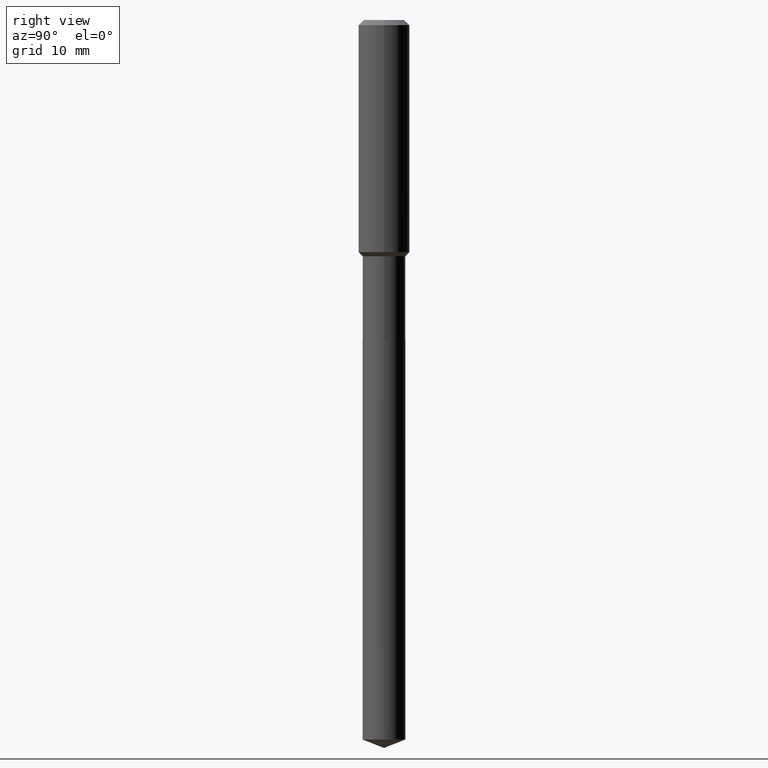
[diagram: clean part render]
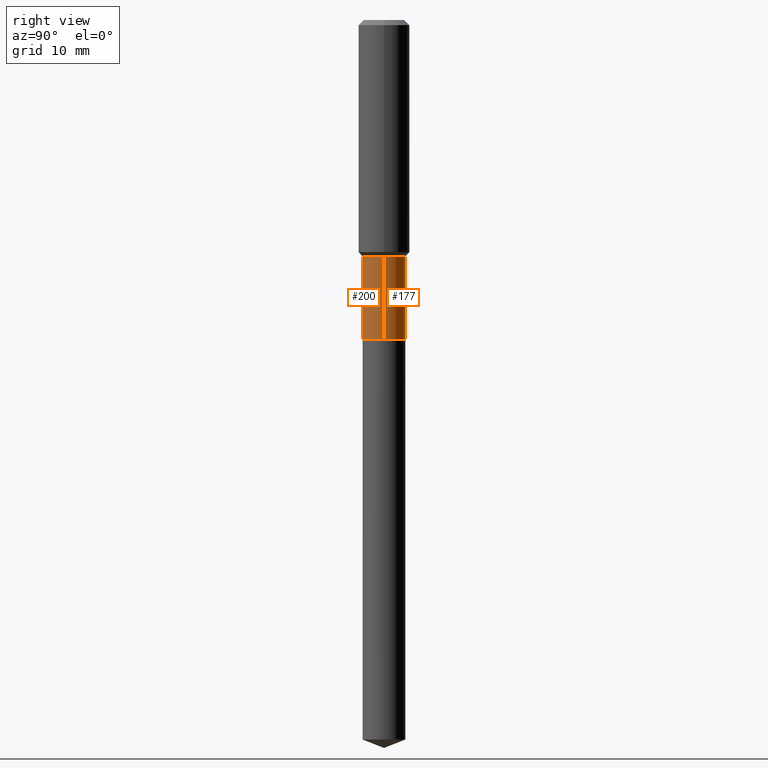
[diagram: same view with one multi-face feature highlighted, each face labeled with its STEP entity id]
A machine part, right view. The highlighted faces form ONE feature: a constant-radius fillet chain: 2 tangent blend faces with common blend radius 3.3503 mm. The faces share edges in the B-rep.
Their STEP definitions:
[1] entity #200 (Cylinder):
#28 = LINE ( 'NONE', #166, #396 ) ;
#46 = CARTESIAN_POINT ( 'NONE',  ( 3.561825316208651906E-29, -5.085342570025042633E-15, -1.456500000000000128 ) ) ;
#52 = ORIENTED_EDGE ( 'NONE', *, *, #141, .T. ) ;
#77 = FACE_OUTER_BOUND ( 'NONE', #220, .T. ) ;
#82 = ORIENTED_EDGE ( 'NONE', *, *, #289, .T. ) ;
#83 = CARTESIAN_POINT ( 'NONE',  ( 0.1318999999999999340, -9.210527771868182178E-16, 6.431677167274836239E-30 ) ) ;
#108 = AXIS2_PLACEMENT_3D ( 'NONE', #429, #432, #394 ) ;
#115 = VERTEX_POINT ( 'NONE', #343 ) ;
#134 = AXIS2_PLACEMENT_3D ( 'NONE', #46, #350, #286 ) ;
#141 = EDGE_CURVE ( 'NONE', #115, #155, #147, .T. ) ;
#147 = CIRCLE ( 'NONE', #108, 0.1318999999999999895 ) ;
#153 = ORIENTED_EDGE ( 'NONE', *, *, #170, .F. ) ;
#155 = VERTEX_POINT ( 'NONE', #351 ) ;
#166 = CARTESIAN_POINT ( 'NONE',  ( -0.1318999999999999340, 9.372058684675716759E-16, -6.488075384046218569E-30 ) ) ;
#169 = DIRECTION ( 'NONE',  ( -2.445468806185136597E-29, 3.491481338843145583E-15, 1.000000000000000000 ) ) ;
#170 = EDGE_CURVE ( 'NONE', #115, #459, #28, .T. ) ;
#200 = ADVANCED_FACE ( 'NONE', ( #77 ), #318, .T. ) ;
#203 = AXIS2_PLACEMENT_3D ( 'NONE', #355, #169, #392 ) ;
#206 = CARTESIAN_POINT ( 'NONE',  ( 0.1318999999999999062, -6.006395347211860259E-15, -1.456500000000000128 ) ) ;
#220 = EDGE_LOOP ( 'NONE', ( #153, #52, #82, #254 ) ) ;
#228 = CARTESIAN_POINT ( 'NONE',  ( -0.1318999999999999062, -5.041083053966604545E-15, -1.456500000000000128 ) ) ;
#254 = ORIENTED_EDGE ( 'NONE', *, *, #465, .F. ) ;
#277 = DIRECTION ( 'NONE',  ( -2.445468806185136877E-29, 3.491481338843145188E-15, 1.000000000000000000 ) ) ;
#286 = DIRECTION ( 'NONE',  ( 1.000000000000000000, -6.982962677686265922E-15, 0.000000000000000000 ) ) ;
#289 = EDGE_CURVE ( 'NONE', #155, #338, #425, .T. ) ;
#318 = CYLINDRICAL_SURFACE ( 'NONE', #203, 0.1318999999999999340 ) ;
#337 = CIRCLE ( 'NONE', #134, 0.1318999999999999062 ) ;
#338 = VERTEX_POINT ( 'NONE', #206 ) ;
#340 = DIRECTION ( 'NONE',  ( -2.445468806185136877E-29, 3.491481338843145188E-15, 1.000000000000000000 ) ) ;
#343 = CARTESIAN_POINT ( 'NONE',  ( -0.1318999999999999895, -5.041083053966604545E-15, -1.968000000000000194 ) ) ;
#350 = DIRECTION ( 'NONE',  ( -2.445468806185136597E-29, 3.491481338843145583E-15, 1.000000000000000000 ) ) ;
#351 = CARTESIAN_POINT ( 'NONE',  ( 0.1318999999999999895, -7.792288052030129408E-15, -1.968000000000000194 ) ) ;
#355 = CARTESIAN_POINT ( 'NONE',  ( 0.000000000000000000, 0.000000000000000000, 0.000000000000000000 ) ) ;
#392 = DIRECTION ( 'NONE',  ( 1.000000000000000000, -6.982962677686267499E-15, 4.876176775795935793E-29 ) ) ;
#394 = DIRECTION ( 'NONE',  ( 1.000000000000000000, -6.982962677686269077E-15, 0.000000000000000000 ) ) ;
#396 = VECTOR ( 'NONE', #340, 39.37007874015748143 ) ;
#425 = LINE ( 'NONE', #83, #436 ) ;
#429 = CARTESIAN_POINT ( 'NONE',  ( 4.812682610572349594E-29, -6.871235274843310993E-15, -1.968000000000000194 ) ) ;
#432 = DIRECTION ( 'NONE',  ( -2.445468806185136597E-29, 3.491481338843145583E-15, 1.000000000000000000 ) ) ;
#436 = VECTOR ( 'NONE', #277, 39.37007874015748143 ) ;
#459 = VERTEX_POINT ( 'NONE', #228 ) ;
#465 = EDGE_CURVE ( 'NONE', #459, #338, #337, .T. ) ;
[2] entity #177 (Cylinder):
#7 = CIRCLE ( 'NONE', #378, 0.1318999999999999895 ) ;
#14 = ORIENTED_EDGE ( 'NONE', *, *, #289, .F. ) ;
#28 = LINE ( 'NONE', #166, #396 ) ;
#35 = DIRECTION ( 'NONE',  ( -2.445468806185136597E-29, 3.491481338843145583E-15, 1.000000000000000000 ) ) ;
#55 = DIRECTION ( 'NONE',  ( 1.000000000000000000, -6.982962677686269077E-15, 0.000000000000000000 ) ) ;
#61 = CARTESIAN_POINT ( 'NONE',  ( 3.561825316208651906E-29, -5.085342570025042633E-15, -1.456500000000000128 ) ) ;
#83 = CARTESIAN_POINT ( 'NONE',  ( 0.1318999999999999340, -9.210527771868182178E-16, 6.431677167274836239E-30 ) ) ;
#103 = CARTESIAN_POINT ( 'NONE',  ( 0.000000000000000000, 0.000000000000000000, 0.000000000000000000 ) ) ;
#115 = VERTEX_POINT ( 'NONE', #343 ) ;
#124 = AXIS2_PLACEMENT_3D ( 'NONE', #103, #399, #453 ) ;
#138 = CARTESIAN_POINT ( 'NONE',  ( 4.812682610572349594E-29, -6.871235274843310993E-15, -1.968000000000000194 ) ) ;
#155 = VERTEX_POINT ( 'NONE', #351 ) ;
#166 = CARTESIAN_POINT ( 'NONE',  ( -0.1318999999999999340, 9.372058684675716759E-16, -6.488075384046218569E-30 ) ) ;
#170 = EDGE_CURVE ( 'NONE', #115, #459, #28, .T. ) ;
#177 = ADVANCED_FACE ( 'NONE', ( #485 ), #326, .T. ) ;
#180 = EDGE_CURVE ( 'NONE', #338, #459, #407, .T. ) ;
#189 = EDGE_LOOP ( 'NONE', ( #424, #382, #464, #14 ) ) ;
#206 = CARTESIAN_POINT ( 'NONE',  ( 0.1318999999999999062, -6.006395347211860259E-15, -1.456500000000000128 ) ) ;
#216 = EDGE_CURVE ( 'NONE', #155, #115, #7, .T. ) ;
#228 = CARTESIAN_POINT ( 'NONE',  ( -0.1318999999999999062, -5.041083053966604545E-15, -1.456500000000000128 ) ) ;
#277 = DIRECTION ( 'NONE',  ( -2.445468806185136877E-29, 3.491481338843145188E-15, 1.000000000000000000 ) ) ;
#289 = EDGE_CURVE ( 'NONE', #155, #338, #425, .T. ) ;
#326 = CYLINDRICAL_SURFACE ( 'NONE', #124, 0.1318999999999999340 ) ;
#338 = VERTEX_POINT ( 'NONE', #206 ) ;
#340 = DIRECTION ( 'NONE',  ( -2.445468806185136877E-29, 3.491481338843145188E-15, 1.000000000000000000 ) ) ;
#343 = CARTESIAN_POINT ( 'NONE',  ( -0.1318999999999999895, -5.041083053966604545E-15, -1.968000000000000194 ) ) ;
#351 = CARTESIAN_POINT ( 'NONE',  ( 0.1318999999999999895, -7.792288052030129408E-15, -1.968000000000000194 ) ) ;
#356 = AXIS2_PLACEMENT_3D ( 'NONE', #61, #35, #488 ) ;
#378 = AXIS2_PLACEMENT_3D ( 'NONE', #138, #481, #55 ) ;
#382 = ORIENTED_EDGE ( 'NONE', *, *, #170, .T. ) ;
#396 = VECTOR ( 'NONE', #340, 39.37007874015748143 ) ;
#399 = DIRECTION ( 'NONE',  ( -2.445468806185136597E-29, 3.491481338843145583E-15, 1.000000000000000000 ) ) ;
#407 = CIRCLE ( 'NONE', #356, 0.1318999999999999062 ) ;
#424 = ORIENTED_EDGE ( 'NONE', *, *, #216, .T. ) ;
#425 = LINE ( 'NONE', #83, #436 ) ;
#436 = VECTOR ( 'NONE', #277, 39.37007874015748143 ) ;
#453 = DIRECTION ( 'NONE',  ( 1.000000000000000000, -6.982962677686267499E-15, 4.876176775795935793E-29 ) ) ;
#459 = VERTEX_POINT ( 'NONE', #228 ) ;
#464 = ORIENTED_EDGE ( 'NONE', *, *, #180, .F. ) ;
#481 = DIRECTION ( 'NONE',  ( -2.445468806185136597E-29, 3.491481338843145583E-15, 1.000000000000000000 ) ) ;
#485 = FACE_OUTER_BOUND ( 'NONE', #189, .T. ) ;
#488 = DIRECTION ( 'NONE',  ( 1.000000000000000000, -6.982962677686265922E-15, 0.000000000000000000 ) ) ;